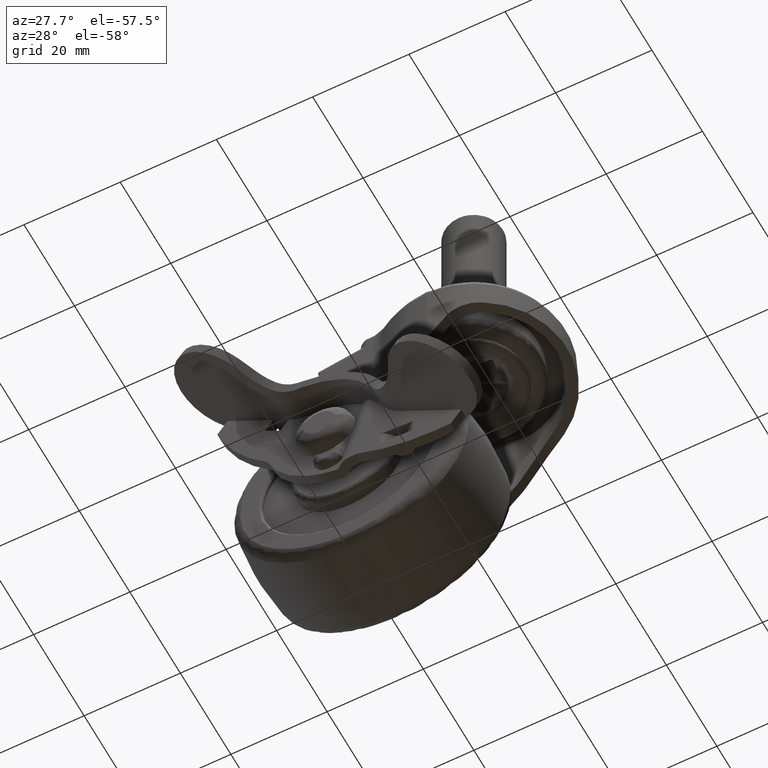
[diagram: clean part render]
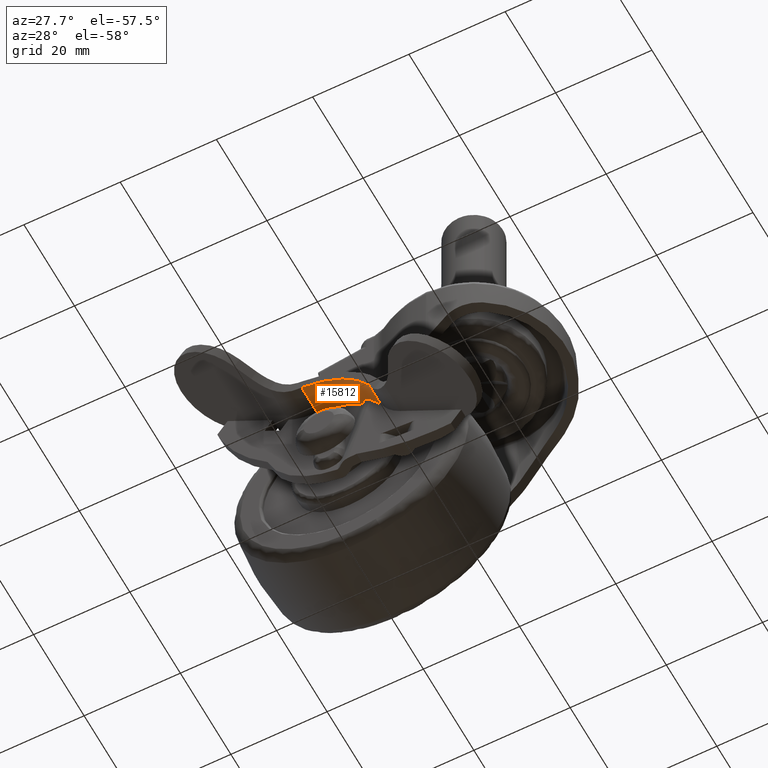
[diagram: same view with one face highlighted and labeled with its STEP entity id]
A machine part, auxiliary view. The second image highlights one B-rep face of the part: STEP entity #15812.
In plain terms, the highlighted face is a freeform B-spline surface patch.
Its self-contained STEP definition (entity closure, byte-faithful):
#13208=CARTESIAN_POINT('',(4.501612351026160,-18.489470999999948,9.444997393731420));
#13209=VERTEX_POINT('',#13208);
#13215=CARTESIAN_POINT('',(2.216411101661975,-17.722808380413252,9.867013585481390));
#13216=VERTEX_POINT('',#13215);
#13217=CARTESIAN_POINT('',(2.216411101661975,-17.722808380413252,9.867013585481390));
#13218=CARTESIAN_POINT('',(2.379169894590308,-17.853967238751661,9.847408994368282));
#13219=CARTESIAN_POINT('',(2.551635528516519,-17.966619725748451,9.824440918731689));
#13220=CARTESIAN_POINT('',(2.822961394375466,-18.111088708805202,9.783995124948886));
#13221=CARTESIAN_POINT('',(2.915525651565702,-18.155127501858161,9.769512680429275));
#13222=CARTESIAN_POINT('',(3.057445218024308,-18.215172713318530,9.746152024113844));
#13223=CARTESIAN_POINT('',(3.105264707917833,-18.234184184452591,9.738092164603820));
#13224=CARTESIAN_POINT('',(3.201920053619307,-18.270210650293599,9.721401844170494));
#13225=CARTESIAN_POINT('',(3.250824946007961,-18.287243228642929,9.712758041309154));
#13226=CARTESIAN_POINT('',(3.495648999514464,-18.366739148382219,9.668459375005634));
#13227=CARTESIAN_POINT('',(3.694020285843895,-18.412977763500209,9.629304973153118));
#13228=CARTESIAN_POINT('',(3.994759583965027,-18.459022984605639,9.564663417850170));
#13229=CARTESIAN_POINT('',(4.095541245162283,-18.470459857856230,9.542130746751468));
#13230=CARTESIAN_POINT('',(4.298127361433599,-18.485691681568841,9.495030128539307));
#13231=CARTESIAN_POINT('',(4.400036369830414,-18.489471000000009,9.470432319019594));
#13232=CARTESIAN_POINT('',(4.501612351026160,-18.489471000000002,9.444997393731409));
#13233=B_SPLINE_CURVE_WITH_KNOTS('',3,(#13217,#13218,#13219,#13220,#13221,#13222,#13223,#13224,#13225,#13226,#13227,#13228,#13229,#13230,#13231,#13232),.UNSPECIFIED.,.F.,.U.,(4,2,2,2,2,2,2,4),(0.0,0.249999999999999,0.374999999999998,0.437499999999998,0.499999999999998,0.749999999999999,0.874999999999999,1.0),.UNSPECIFIED.);
#13234=EDGE_CURVE('',#13216,#13209,#13233,.T.);
#13373=CARTESIAN_POINT('',(1.689841773648795,-17.296136047834800,9.922819812413660));
#13374=VERTEX_POINT('',#13373);
#13380=CARTESIAN_POINT('',(0.815642088030353,-16.989471000000052,9.982054652829950));
#13381=VERTEX_POINT('',#13380);
#13382=CARTESIAN_POINT('',(0.815642088030353,-16.989471000000002,9.982054652829950));
#13383=CARTESIAN_POINT('',(0.895197336938084,-16.989470999999970,9.978551000127203));
#13384=CARTESIAN_POINT('',(0.973589004324070,-16.996176139088011,9.974585164082567));
#13385=CARTESIAN_POINT('',(1.128162765903437,-17.022329820765439,9.965807991380705));
#13386=CARTESIAN_POINT('',(1.204345005858797,-17.041777342074120,9.960996169520866));
#13387=CARTESIAN_POINT('',(1.354392126070280,-17.094080534185490,9.950614878067738));
#13388=CARTESIAN_POINT('',(1.426129248177486,-17.126199370875160,9.945193578457131));
#13389=CARTESIAN_POINT('',(1.563027924908591,-17.202123561349371,9.934118658382801));
#13390=CARTESIAN_POINT('',(1.628215840911248,-17.245928617371561,9.928461882700098));
#13391=CARTESIAN_POINT('',(1.689841773648795,-17.296136047834800,9.922819812413660));
#13392=B_SPLINE_CURVE_WITH_KNOTS('',3,(#13382,#13383,#13384,#13385,#13386,#13387,#13388,#13389,#13390,#13391),.UNSPECIFIED.,.F.,.U.,(4,2,2,2,4),(0.0,0.250000000000000,0.500000000000000,0.750000000000000,1.0),.UNSPECIFIED.);
#13393=EDGE_CURVE('',#13381,#13374,#13392,.T.);
#15392=CARTESIAN_POINT('',(-8.656828741620421,-23.133403999999949,7.853536327704060));
#15393=VERTEX_POINT('',#15392);
#15401=CARTESIAN_POINT('',(8.116183929734572,-23.133403999999949,8.128274659948239));
#15402=VERTEX_POINT('',#15401);
#15403=CARTESIAN_POINT('',(-8.656828741620421,-23.133403999999949,7.853536327704060));
#15404=CARTESIAN_POINT('',(-7.374289827694335,-23.133403999999931,8.531567350806963));
#15405=CARTESIAN_POINT('',(-5.500617032629313,-23.133404000000059,9.254876453007118));
#15406=CARTESIAN_POINT('',(-2.791702213372660,-23.133403999999750,9.824173070797665));
#15407=CARTESIAN_POINT('',(-0.215760012422926,-23.133404000000080,10.084914313462511));
#15408=CARTESIAN_POINT('',(2.831355264913118,-23.133403999999871,9.888491382167063));
#15409=CARTESIAN_POINT('',(5.785533905649985,-23.133403999999999,9.140871642315153));
#15410=CARTESIAN_POINT('',(7.423349686873906,-23.133403999999871,8.465805218581920));
#15411=CARTESIAN_POINT('',(8.116183929734572,-23.133403999999949,8.128274659948239));
#15412=B_SPLINE_CURVE_WITH_KNOTS('',3,(#15403,#15404,#15405,#15406,#15407,#15408,#15409,#15410,#15411),.UNSPECIFIED.,.F.,.U.,(4,1,1,1,1,1,4),(0.000000020517177,4.352096226591863,5.984141231992833,8.296202296276809,12.104263649741570,15.096334983781730,17.408383381085141),.UNSPECIFIED.);
#15413=EDGE_CURVE('',#15393,#15402,#15412,.T.);
#15745=CARTESIAN_POINT('',(-8.656828741628171,-16.989471000000052,7.853536327718770));
#15746=VERTEX_POINT('',#15745);
#15754=CARTESIAN_POINT('',(-8.656828741628171,-16.989471000000052,7.853536327718770));
#15755=CARTESIAN_POINT('',(-8.656828741620421,-23.133403999999949,7.853536327704060));
#15756=QUASI_UNIFORM_CURVE('',1,(#15754,#15755),.UNSPECIFIED.,.F.,.U.);
#15757=EDGE_CURVE('',#15746,#15393,#15756,.T.);
#15762=CARTESIAN_POINT('',(-9.108593736791368,-16.835872675000051,7.606753276526250));
#15763=CARTESIAN_POINT('',(-9.108593736791368,-23.290842283124949,7.606753276526250));
#15764=CARTESIAN_POINT('',(-0.163607853019162,-16.835872675000054,12.655642273439417));
#15765=CARTESIAN_POINT('',(-0.163607853019162,-23.290842283124942,12.655642273439417));
#15766=CARTESIAN_POINT('',(8.858425215798235,-16.835872675000047,7.745757155720245));
#15767=CARTESIAN_POINT('',(8.858425215798235,-23.290842283124949,7.745757155720245));
#15775=(BOUNDED_SURFACE()B_SPLINE_SURFACE(1,2,((#15762,#15764,#15766),(#15763,#15765,#15767)),.UNSPECIFIED.,.F.,.F.,.U.)B_SPLINE_SURFACE_WITH_KNOTS((2,2),(3,3),(0.0,6.454969608124900),(0.0,19.169174696774029),.UNSPECIFIED.)GEOMETRIC_REPRESENTATION_ITEM()RATIONAL_B_SPLINE_SURFACE(((1.0,0.874625290975898,0.999988832824349),(1.0,0.874625290975898,0.999988832824349)))REPRESENTATION_ITEM('')SURFACE());
#15776=CARTESIAN_POINT('',(0.815642088030353,-16.989471000000052,9.982054652829950));
#15777=CARTESIAN_POINT('',(-0.462205580050669,-16.989470999999980,10.038534097269990));
#15778=CARTESIAN_POINT('',(-2.516010859510065,-16.989471000000052,9.915784027554896));
#15779=CARTESIAN_POINT('',(-5.713962244997253,-16.989471000000041,9.183280472457561));
#15780=CARTESIAN_POINT('',(-7.571208871429917,-16.989470999999991,8.427317055223396));
#15781=CARTESIAN_POINT('',(-8.656828741628171,-16.989471000000052,7.853536327718770));
#15782=B_SPLINE_CURVE_WITH_KNOTS('',3,(#15776,#15777,#15778,#15779,#15780,#15781),.UNSPECIFIED.,.F.,.U.,(4,1,1,4),(5.060746E-009,3.837234093653437,6.139568171563628,9.823309404906736),.UNSPECIFIED.);
#15783=EDGE_CURVE('',#13381,#15746,#15782,.T.);
#15784=ORIENTED_EDGE('',*,*,#15783,.F.);
#15785=ORIENTED_EDGE('',*,*,#13393,.T.);
#15786=CARTESIAN_POINT('',(1.689841773648795,-17.296136047834800,9.922819812413660));
#15787=CARTESIAN_POINT('',(1.865138949926221,-17.438955022266040,9.906777709145478));
#15788=CARTESIAN_POINT('',(2.040680022177632,-17.581193687252970,9.888173726551198));
#15789=CARTESIAN_POINT('',(2.216411101661975,-17.722808380413252,9.867013585481390));
#15790=B_SPLINE_CURVE_WITH_KNOTS('',3,(#15786,#15787,#15788,#15789),.UNSPECIFIED.,.F.,.U.,(4,4),(8.120060E-012,0.680044888984799),.UNSPECIFIED.);
#15791=EDGE_CURVE('',#13374,#13216,#15790,.T.);
#15792=ORIENTED_EDGE('',*,*,#15791,.T.);
#15793=ORIENTED_EDGE('',*,*,#13234,.T.);
#15794=CARTESIAN_POINT('',(8.116183929887310,-18.489471000000002,8.128274660261742));
#15795=VERTEX_POINT('',#15794);
#15796=CARTESIAN_POINT('',(4.501612351026160,-18.489470999999948,9.444997393731420));
#15797=CARTESIAN_POINT('',(5.747798547428495,-18.489471000000020,9.133060812831950));
#15798=CARTESIAN_POINT('',(6.961358089654939,-18.489471000000059,8.691006048987271));
#15799=CARTESIAN_POINT('',(8.116183929887310,-18.489471000000002,8.128274660261742));
#15800=B_SPLINE_CURVE_WITH_KNOTS('',3,(#15796,#15797,#15798,#15799),.UNSPECIFIED.,.F.,.U.,(4,4),(1.068442E-009,3.853880102124267),.UNSPECIFIED.);
#15801=EDGE_CURVE('',#13209,#15795,#15800,.T.);
#15802=ORIENTED_EDGE('',*,*,#15801,.T.);
#15803=CARTESIAN_POINT('',(8.116183929887310,-18.489471000000002,8.128274660261742));
#15804=CARTESIAN_POINT('',(8.116183929734572,-23.133403999999949,8.128274659948239));
#15805=QUASI_UNIFORM_CURVE('',1,(#15803,#15804),.UNSPECIFIED.,.F.,.U.);
#15806=EDGE_CURVE('',#15795,#15402,#15805,.T.);
#15807=ORIENTED_EDGE('',*,*,#15806,.T.);
#15808=ORIENTED_EDGE('',*,*,#15413,.F.);
#15809=ORIENTED_EDGE('',*,*,#15757,.F.);
#15810=EDGE_LOOP('',(#15784,#15785,#15792,#15793,#15802,#15807,#15808,#15809));
#15811=FACE_OUTER_BOUND('',#15810,.T.);
#15812=ADVANCED_FACE('',(#15811),#15775,.F.);